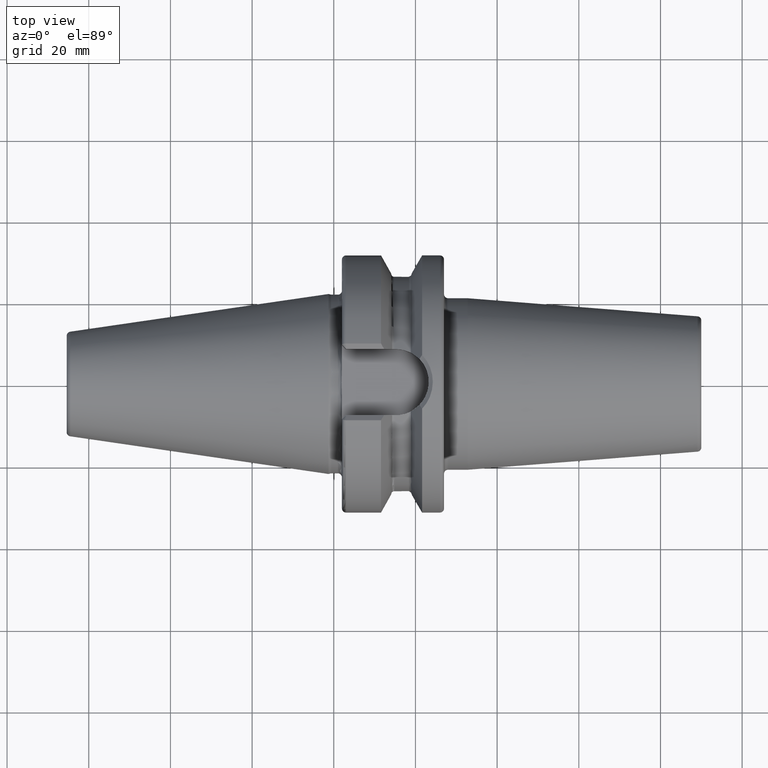
[diagram: clean part render]
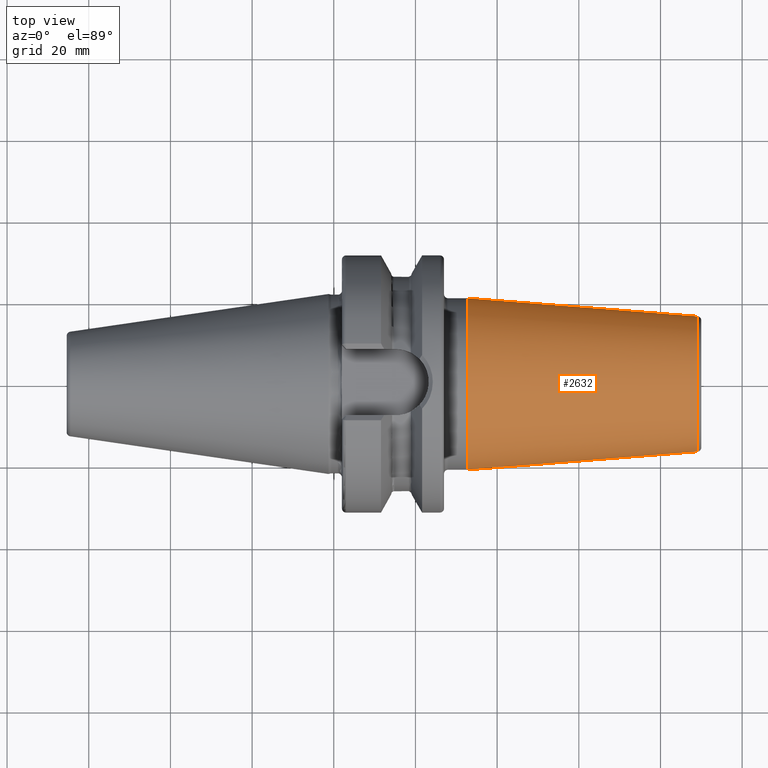
[diagram: same view with one face highlighted and labeled with its STEP entity id]
A machine part, top view. The second image highlights one B-rep face of the part: STEP entity #2632.
In plain terms, the highlighted conical surface has half-angle 4.5 deg.
Its self-contained STEP definition (entity closure, byte-faithful):
#861=CARTESIAN_POINT('',(3.282207868722E1,0.E0,0.E0));
#862=DIRECTION('',(1.E0,0.E0,0.E0));
#863=DIRECTION('',(0.E0,1.E0,0.E0));
#864=AXIS2_PLACEMENT_3D('',#861,#862,#863);
#889=DIRECTION('',(-9.969173337331E-1,7.845909572785E-2,8.099427407697E-14));
#890=VECTOR('',#889,5.643033630266E1);
#891=CARTESIAN_POINT('',(8.907845909573E1,1.657252684207E1,
-4.567962366475E-12));
#892=LINE('',#891,#890);
#893=DIRECTION('',(-9.969173337331E-1,-7.845909572785E-2,-8.092011182060E-14));
#894=VECTOR('',#893,5.643033630266E1);
#895=CARTESIAN_POINT('',(8.907845909573E1,-1.657252684207E1,
4.563777365407E-12));
#896=LINE('',#895,#894);
#907=CARTESIAN_POINT('',(8.907845909573E1,0.E0,0.E0));
#908=DIRECTION('',(-1.E0,0.E0,0.E0));
#909=DIRECTION('',(0.E0,-1.E0,0.E0));
#910=AXIS2_PLACEMENT_3D('',#907,#908,#909);
#1409=CARTESIAN_POINT('',(3.282207868722E1,2.1E1,0.E0));
#1410=VERTEX_POINT('',#1409);
#1411=CARTESIAN_POINT('',(3.282207868722E1,-2.1E1,0.E0));
#1412=VERTEX_POINT('',#1411);
#1413=CARTESIAN_POINT('',(8.907845909573E1,1.657252684207E1,0.E0));
#1414=CARTESIAN_POINT('',(8.907845909573E1,-1.657252684207E1,0.E0));
#1415=VERTEX_POINT('',#1413);
#1416=VERTEX_POINT('',#1414);
#2621=CARTESIAN_POINT('',(6.095026889147E1,0.E0,0.E0));
#2622=DIRECTION('',(-1.E0,0.E0,0.E0));
#2623=DIRECTION('',(0.E0,1.E0,0.E0));
#2624=AXIS2_PLACEMENT_3D('',#2621,#2622,#2623);
#2625=CONICAL_SURFACE('',#2624,1.878626342104E1,4.5E0);
#2626=ORIENTED_EDGE('',*,*,#2612,.F.);
#2627=ORIENTED_EDGE('',*,*,#2587,.T.);
#2628=ORIENTED_EDGE('',*,*,#2557,.F.);
#2629=ORIENTED_EDGE('',*,*,#2584,.F.);
#2630=EDGE_LOOP('',(#2626,#2627,#2628,#2629));
#2631=FACE_OUTER_BOUND('',#2630,.F.);
#2632=ADVANCED_FACE('',(#2631),#2625,.T.);
#865=CIRCLE('',#864,2.1E1);
#911=CIRCLE('',#910,1.657252684207E1);
#2557=EDGE_CURVE('',#1410,#1412,#865,.T.);
#2584=EDGE_CURVE('',#1415,#1410,#892,.T.);
#2587=EDGE_CURVE('',#1416,#1412,#896,.T.);
#2612=EDGE_CURVE('',#1416,#1415,#911,.T.);